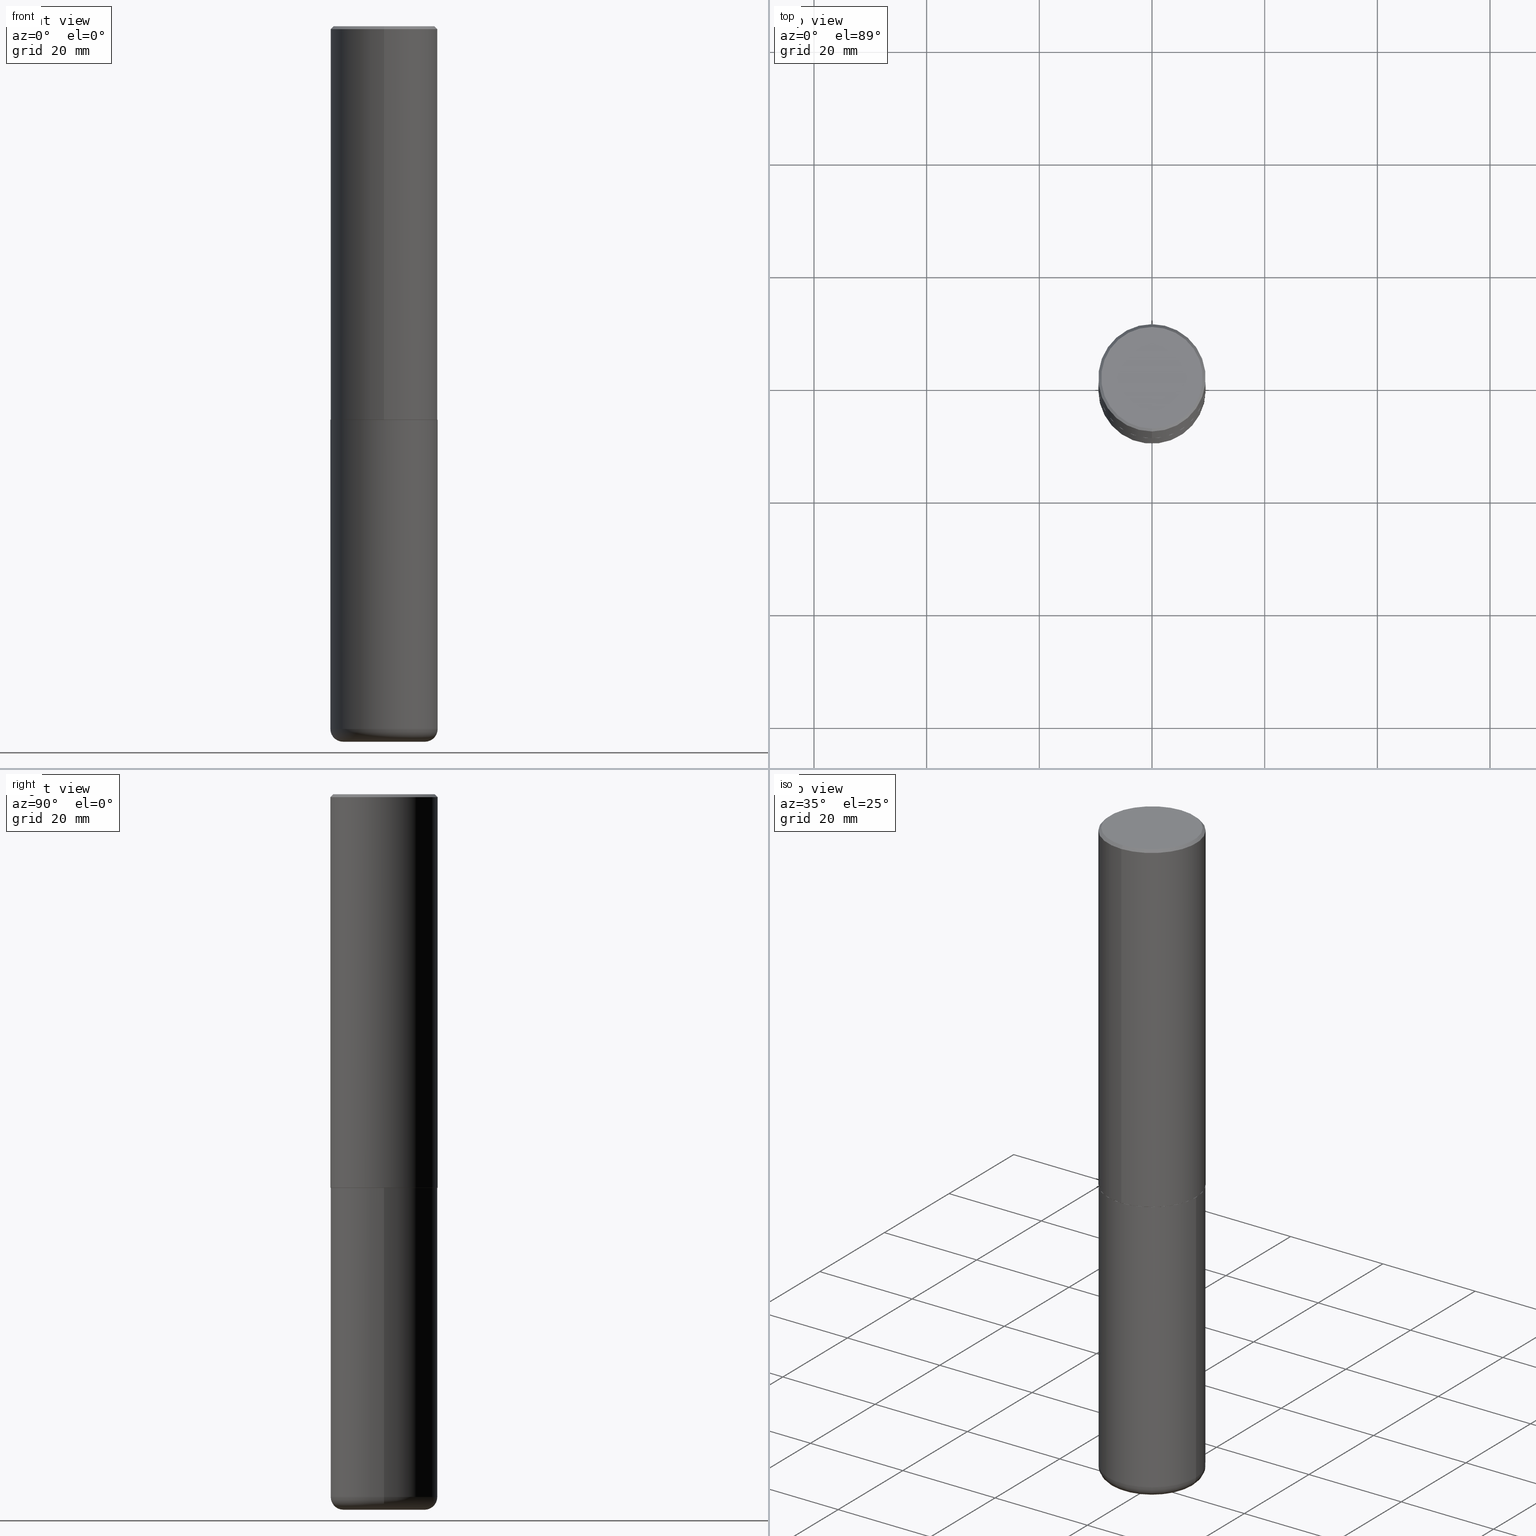
[diagram: canonical four-view strip — front | top / right | iso, engineering-drawing reading convention]
A machine part, canonical four-view strip (front | top / right | iso — engineering-drawing reading convention). The complete STEP part file that produces these views, byte-faithful:
ISO-10303-21;
HEADER;
FILE_DESCRIPTION (( 'STEP AP203' ),
    '1' );
FILE_NAME ('37662.STEP',
    '2024-03-02T07:23:59',
    ( '' ),
    ( '' ),
    'SwSTEP 2.0',
    'SolidWorks 2023',
    '' );
FILE_SCHEMA (( 'CONFIG_CONTROL_DESIGN' ));
ENDSEC;

DATA;
#1 = FACE_OUTER_BOUND ( 'NONE', #153, .T. ) ;
#2 = ORIENTED_EDGE ( 'NONE', *, *, #14, .T. ) ;
#3 = DIRECTION ( 'NONE',  ( -2.446040391741596606E-29, 3.490662795793665557E-15, 1.000000000000000000 ) ) ;
#4 = DIRECTION ( 'NONE',  ( -2.445468806185136877E-29, 3.491481338843145188E-15, 1.000000000000000000 ) ) ;
#5 = DATE_AND_TIME ( #70, #200 ) ;
#6 = LINE ( 'NONE', #140, #92 ) ;
#7 = LOCAL_TIME ( 2, 23, 59.00000000000000000, #12 ) ;
#8 = CALENDAR_DATE ( 2024, 2, 3 ) ;
#9 = DIRECTION ( 'NONE',  ( 2.438088387897960049E-29, -3.491481338843145188E-15, -1.000000000000000000 ) ) ;
#10 = APPLICATION_PROTOCOL_DEFINITION ( 'international standard', 'config_control_design', 1994, #344 ) ;
#11 = LINE ( 'NONE', #202, #33 ) ;
#12 = COORDINATED_UNIVERSAL_TIME_OFFSET ( 5, 0, .BEHIND. ) ;
#13 = CC_DESIGN_DATE_AND_TIME_ASSIGNMENT ( #5, #105, ( #141 ) ) ;
#14 = EDGE_CURVE ( 'NONE', #337, #113, #383, .T. ) ;
#15 = AXIS2_PLACEMENT_3D ( 'NONE', #198, #345, #162 ) ;
#16 = DATE_AND_TIME ( #272, #7 ) ;
#17 = ADVANCED_FACE ( 'NONE', ( #172 ), #190, .T. ) ;
#18 = VERTEX_POINT ( 'NONE', #290 ) ;
#19 = CIRCLE ( 'NONE', #256, 0.08999999999999992728 ) ;
#20 = AXIS2_PLACEMENT_3D ( 'NONE', #350, #260, #137 ) ;
#21 = ORIENTED_EDGE ( 'NONE', *, *, #302, .T. ) ;
#22 = ORIENTED_EDGE ( 'NONE', *, *, #29, .T. ) ;
#23 = CARTESIAN_POINT ( 'NONE',  ( 6.724165036897648492E-29, -9.595832025636787455E-15, -2.749000000000000110 ) ) ;
#24 = CIRCLE ( 'NONE', #81, 0.3739999999999999991 ) ;
#25 = DIRECTION ( 'NONE',  ( -6.982962677686266711E-15, -1.000000000000000000, 2.921762560068730595E-15 ) ) ;
#26 = LINE ( 'NONE', #123, #216 ) ;
#27 = DIRECTION ( 'NONE',  ( 1.000000000000000000, -6.982962677686266711E-15, 0.000000000000000000 ) ) ;
#28 = DIRECTION ( 'NONE',  ( -6.982962677686265922E-15, -1.000000000000000000, 3.494488891895536035E-15 ) ) ;
#29 = EDGE_CURVE ( 'NONE', #220, #47, #26, .T. ) ;
#30 = DIRECTION ( 'NONE',  ( -2.446040391741596606E-29, 3.490662795793665557E-15, 1.000000000000000000 ) ) ;
#31 = ORIENTED_EDGE ( 'NONE', *, *, #298, .T. ) ;
#32 = DIRECTION ( 'NONE',  ( -2.446040391741596606E-29, 3.490662795793665557E-15, 1.000000000000000000 ) ) ;
#33 = VECTOR ( 'NONE', #4, 39.37007874015748143 ) ;
#34 = CARTESIAN_POINT ( 'NONE',  ( 4.892080783483214581E-31, -6.981325591587361238E-17, -0.02000000000000008715 ) ) ;
#35 = DIRECTION ( 'NONE',  ( -6.982962677686265922E-15, -1.000000000000000000, 2.913971193241877611E-15 ) ) ;
#36 = PLANE ( 'NONE',  #130 ) ;
#37 = CARTESIAN_POINT ( 'NONE',  ( 6.726611077289389265E-29, -9.599322688432580971E-15, -2.750000000000000000 ) ) ;
#38 = PERSON_AND_ORGANIZATION_ROLE ( 'creator' ) ;
#39 = CONICAL_SURFACE ( 'NONE', #300, 0.3750000000000000555, 0.7853981633974465026 ) ;
#40 = DIRECTION ( 'NONE',  ( 1.000000000000000000, -6.982962677686269077E-15, 0.000000000000000000 ) ) ;
#41 = APPROVAL_ROLE ( '' ) ;
#42 = DIRECTION ( 'NONE',  ( -2.445468806185136597E-29, 3.491481338843145583E-15, 1.000000000000000000 ) ) ;
#43 = APPROVAL_DATE_TIME ( #362, #415 ) ;
#44 = AXIS2_PLACEMENT_3D ( 'NONE', #294, #413, #128 ) ;
#45 = ORIENTED_EDGE ( 'NONE', *, *, #342, .F. ) ;
#46 = SHAPE_DEFINITION_REPRESENTATION ( #412, #373 ) ;
#47 = VERTEX_POINT ( 'NONE', #126 ) ;
#48 = AXIS2_PLACEMENT_3D ( 'NONE', #96, #197, #28 ) ;
#49 = AXIS2_PLACEMENT_3D ( 'NONE', #63, #233, #196 ) ;
#50 = LOCAL_TIME ( 2, 23, 59.00000000000000000, #303 ) ;
#51 = APPROVAL_DATE_TIME ( #403, #191 ) ;
#52 = ORIENTED_EDGE ( 'NONE', *, *, #266, .T. ) ;
#53 = EDGE_CURVE ( 'NONE', #277, #247, #154, .T. ) ;
#54 = ORIENTED_EDGE ( 'NONE', *, *, #99, .T. ) ;
#55 = ORIENTED_EDGE ( 'NONE', *, *, #335, .T. ) ;
#56 = CIRCLE ( 'NONE', #49, 0.3750000000000000555 ) ;
#57 = DESIGN_CONTEXT ( 'detailed design', #344, 'design' ) ;
#58 = ORGANIZATION ( 'UNSPECIFIED', 'UNSPECIFIED', '' ) ;
#59 = DIRECTION ( 'NONE',  ( 6.982962677686265922E-15, 1.000000000000000000, -3.494488891895536035E-15 ) ) ;
#60 = CARTESIAN_POINT ( 'NONE',  ( 0.000000000000000000, 0.000000000000000000, 0.000000000000000000 ) ) ;
#61 = CARTESIAN_POINT ( 'NONE',  ( 2.664535259100376880E-15, 0.3750000000000002220, -1.308998548422625521E-15 ) ) ;
#62 = DIRECTION ( 'NONE',  ( 2.446040391741596045E-29, -3.490662795793665557E-15, -1.000000000000000000 ) ) ;
#63 = CARTESIAN_POINT ( 'NONE',  ( 6.725039217009124520E-29, -9.601573681818649859E-15, -2.750000000000000000 ) ) ;
#64 = VERTEX_POINT ( 'NONE', #251 ) ;
#65 = DIRECTION ( 'NONE',  ( 2.446040391741596606E-29, -3.490662795793665557E-15, -1.000000000000000000 ) ) ;
#66 = CIRCLE ( 'NONE', #346, 0.2850000000000000311 ) ;
#67 = DIRECTION ( 'NONE',  ( 1.000000000000000000, -6.982962677686266711E-15, 4.876176775795935793E-29 ) ) ;
#68 = EDGE_CURVE ( 'NONE', #64, #47, #169, .T. ) ;
#69 = FACE_OUTER_BOUND ( 'NONE', #309, .T. ) ;
#70 = CALENDAR_DATE ( 2024, 2, 3 ) ;
#71 = DIRECTION ( 'NONE',  ( -2.445468806185136597E-29, 3.491481338843145583E-15, 1.000000000000000000 ) ) ;
#72 = LENGTH_MEASURE_WITH_UNIT ( LENGTH_MEASURE( 0.02539999999999999897 ), #78 );
#73 = AXIS2_PLACEMENT_3D ( 'NONE', #60, #318, #222 ) ;
#74 = CONICAL_SURFACE ( 'NONE', #267, 0.3739999999999999991, 0.7853981633977213939 ) ;
#75 = FACE_OUTER_BOUND ( 'NONE', #186, .T. ) ;
#76 = EDGE_CURVE ( 'NONE', #411, #310, #19, .T. ) ;
#77 = LINE ( 'NONE', #174, #306 ) ;
#78 =( LENGTH_UNIT ( ) NAMED_UNIT ( * ) SI_UNIT ( $, .METRE. ) );
#79 = CLOSED_SHELL ( 'NONE', ( #316, #255, #118, #192, #157, #203 ) ) ;
#80 = ORIENTED_EDGE ( 'NONE', *, *, #397, .F. ) ;
#81 = AXIS2_PLACEMENT_3D ( 'NONE', #321, #229, #25 ) ;
#82 = EDGE_LOOP ( 'NONE', ( #166, #52 ) ) ;
#83 = ORIENTED_EDGE ( 'NONE', *, *, #381, .T. ) ;
#84 = EDGE_CURVE ( 'NONE', #47, #64, #239, .T. ) ;
#85 = AXIS2_PLACEMENT_3D ( 'NONE', #265, #42, #354 ) ;
#86 = VERTEX_POINT ( 'NONE', #414 ) ;
#87 = ORIENTED_EDGE ( 'NONE', *, *, #226, .T. ) ;
#88 = DIRECTION ( 'NONE',  ( 1.000000000000000000, -6.982962677686269077E-15, 4.883557194083113462E-29 ) ) ;
#89 = ADVANCED_FACE ( 'NONE', ( #129 ), #257, .F. ) ;
#90 = ORIENTED_EDGE ( 'NONE', *, *, #177, .F. ) ;
#91 = VECTOR ( 'NONE', #230, 39.37007874015748143 ) ;
#92 = VECTOR ( 'NONE', #3, 39.37007874015748143 ) ;
#93 = PLANE ( 'NONE',  #44 ) ;
#94 = EDGE_LOOP ( 'NONE', ( #188, #21, #418, #199 ) ) ;
#95 = DIRECTION ( 'NONE',  ( -2.445468806185136597E-29, 3.491481338843145583E-15, 1.000000000000000000 ) ) ;
#96 = CARTESIAN_POINT ( 'NONE',  ( 4.892080783483214581E-31, -6.981325591587361238E-17, -0.02000000000000008715 ) ) ;
#97 = CARTESIAN_POINT ( 'NONE',  ( 6.726611077289389265E-29, -9.599322688432580971E-15, -2.750000000000000000 ) ) ;
#98 = CARTESIAN_POINT ( 'NONE',  ( -0.3749999999999999445, 2.664535259100375303E-15, -1.844600658845589318E-29 ) ) ;
#99 = EDGE_CURVE ( 'NONE', #310, #337, #109, .T. ) ;
#100 = AXIS2_PLACEMENT_3D ( 'NONE', #34, #160, #285 ) ;
#101 = LINE ( 'NONE', #348, #395 ) ;
#102 = CONICAL_SURFACE ( 'NONE', #323, 0.3739999999999999991, 0.7853981633977213939 ) ;
#103 = CARTESIAN_POINT ( 'NONE',  ( -2.504081769186608216E-15, -0.3549999999999999822, 1.285848347115290366E-15 ) ) ;
#104 = PLANE ( 'NONE',  #416 ) ;
#105 = DATE_TIME_ROLE ( 'creation_date' ) ;
#106 = ADVANCED_FACE ( 'NONE', ( #138 ), #102, .T. ) ;
#107 = FACE_OUTER_BOUND ( 'NONE', #82, .T. ) ;
#108 = CC_DESIGN_PERSON_AND_ORGANIZATION_ASSIGNMENT ( #112, #235, ( #141 ) ) ;
#109 = CIRCLE ( 'NONE', #394, 0.3749999999999999445 ) ;
#110 = CIRCLE ( 'NONE', #366, 0.3750000000000003886 ) ;
#111 = DIRECTION ( 'NONE',  ( -2.445468806185136597E-29, 3.491481338843145583E-15, 1.000000000000000000 ) ) ;
#112 = PERSON_AND_ORGANIZATION ( #210, #58 ) ;
#113 = VERTEX_POINT ( 'NONE', #204 ) ;
#114 = EDGE_CURVE ( 'NONE', #310, #218, #11, .T. ) ;
#115 = CIRCLE ( 'NONE', #339, 0.3750000000000000555 ) ;
#116 = ORIENTED_EDGE ( 'NONE', *, *, #53, .T. ) ;
#117 = COORDINATED_UNIVERSAL_TIME_OFFSET ( 5, 0, .BEHIND. ) ;
#118 = ADVANCED_FACE ( 'NONE', ( #107 ), #104, .F. ) ;
#119 = ORIENTED_EDGE ( 'NONE', *, *, #266, .F. ) ;
#120 = ORIENTED_EDGE ( 'NONE', *, *, #387, .F. ) ;
#121 = CIRCLE ( 'NONE', #232, 0.2850000000000000311 ) ;
#122 = CC_DESIGN_APPROVAL ( #352, ( #149 ) ) ;
#123 = CARTESIAN_POINT ( 'NONE',  ( -2.572686749164323547E-15, -0.3750000000000001110, -0.01999999999999877570 ) ) ;
#124 = EDGE_CURVE ( 'NONE', #215, #64, #385, .T. ) ;
#125 = CARTESIAN_POINT ( 'NONE',  ( 6.725039217009124520E-29, -9.601573681818649859E-15, -2.750000000000000000 ) ) ;
#126 = CARTESIAN_POINT ( 'NONE',  ( -2.572686749164323547E-15, -0.3750000000000001110, -0.01999999999999877570 ) ) ;
#127 = CC_DESIGN_PERSON_AND_ORGANIZATION_ASSIGNMENT ( #328, #270, ( #286 ) ) ;
#128 = DIRECTION ( 'NONE',  ( -6.982962677686265922E-15, -1.000000000000000000, 3.490662795793665557E-15 ) ) ;
#129 = FACE_OUTER_BOUND ( 'NONE', #280, .T. ) ;
#130 = AXIS2_PLACEMENT_3D ( 'NONE', #329, #304, #243 ) ;
#131 = LOCAL_TIME ( 2, 23, 59.00000000000000000, #117 ) ;
#132 = DIRECTION ( 'NONE',  ( -2.445468806185136597E-29, 3.491481338843145583E-15, 1.000000000000000000 ) ) ;
#133 = ORIENTED_EDGE ( 'NONE', *, *, #278, .T. ) ;
#134 = CYLINDRICAL_SURFACE ( 'NONE', #246, 0.3749999999999999445 ) ;
#135 = ORIENTED_EDGE ( 'NONE', *, *, #151, .F. ) ;
#136 = MANIFOLD_SOLID_BREP ( 'Body-Move/Copy2[2]', #281 ) ;
#137 = DIRECTION ( 'NONE',  ( -6.982962677686266711E-15, -1.000000000000000000, 3.490662795793665951E-15 ) ) ;
#138 = FACE_OUTER_BOUND ( 'NONE', #406, .T. ) ;
#139 = SECURITY_CLASSIFICATION_LEVEL ( 'unclassified' ) ;
#140 = CARTESIAN_POINT ( 'NONE',  ( -2.618611004132351594E-15, -0.3750000000000002220, 1.308998548422625521E-15 ) ) ;
#141 = PRODUCT_DEFINITION ( 'UNKNOWN', '', #149, #57 ) ;
#142 = DATE_TIME_ROLE ( 'classification_date' ) ;
#143 = DIRECTION ( 'NONE',  ( -6.982962677686266711E-15, -1.000000000000000000, 2.921762560068730595E-15 ) ) ;
#144 = CALENDAR_DATE ( 2024, 2, 3 ) ;
#145 = FACE_OUTER_BOUND ( 'NONE', #369, .T. ) ;
#146 = APPROVAL_DATE_TIME ( #16, #352 ) ;
#147 = MANIFOLD_SOLID_BREP ( 'Body-Move/Copy2[1]', #79 ) ;
#148 = AXIS2_PLACEMENT_3D ( 'NONE', #176, #361, #332 ) ;
#149 = PRODUCT_DEFINITION_FORMATION_WITH_SPECIFIED_SOURCE ( 'ANY', '', #279, .NOT_KNOWN. ) ;
#150 = DATE_AND_TIME ( #8, #242 ) ;
#151 = EDGE_CURVE ( 'NONE', #337, #310, #161, .T. ) ;
#152 = ORIENTED_EDGE ( 'NONE', *, *, #219, .T. ) ;
#153 = EDGE_LOOP ( 'NONE', ( #284, #22, #261, #315 ) ) ;
#154 = CIRCLE ( 'NONE', #376, 0.3750000000000003886 ) ;
#155 = AXIS2_PLACEMENT_3D ( 'NONE', #97, #32, #289 ) ;
#156 = ORIENTED_EDGE ( 'NONE', *, *, #76, .T. ) ;
#157 = ADVANCED_FACE ( 'NONE', ( #145 ), #334, .T. ) ;
#158 = EDGE_LOOP ( 'NONE', ( #80, #399 ) ) ;
#159 = ORIENTED_EDGE ( 'NONE', *, *, #114, .F. ) ;
#160 = DIRECTION ( 'NONE',  ( -2.446040391741596606E-29, 3.490662795793665557E-15, 1.000000000000000000 ) ) ;
#161 = CIRCLE ( 'NONE', #275, 0.3749999999999999445 ) ;
#162 = DIRECTION ( 'NONE',  ( -6.982962677686265922E-15, -1.000000000000000000, 3.490662795793665557E-15 ) ) ;
#163 = PRODUCT_RELATED_PRODUCT_CATEGORY ( 'detail', '', ( #279 ) ) ;
#164 = ORIENTED_EDGE ( 'NONE', *, *, #114, .T. ) ;
#165 = CARTESIAN_POINT ( 'NONE',  ( -0.2850000000000000311, -1.511812657680356008E-14, -4.910000000000000142 ) ) ;
#166 = ORIENTED_EDGE ( 'NONE', *, *, #342, .T. ) ;
#167 = FACE_OUTER_BOUND ( 'NONE', #295, .T. ) ;
#168 = ORIENTED_EDGE ( 'NONE', *, *, #302, .F. ) ;
#169 = CIRCLE ( 'NONE', #100, 0.3750000000000000555 ) ;
#170 = DIRECTION ( 'NONE',  ( 7.105427357601001859E-15, 1.000000000000000000, -3.491481338843145583E-15 ) ) ;
#171 = ADVANCED_FACE ( 'NONE', ( #271 ), #74, .T. ) ;
#172 = FACE_OUTER_BOUND ( 'NONE', #311, .T. ) ;
#173 = CARTESIAN_POINT ( 'NONE',  ( 1.222734403092568523E-28, -1.745740669421572989E-14, -5.000000000000000000 ) ) ;
#174 = CARTESIAN_POINT ( 'NONE',  ( -2.611628041454596160E-15, -0.3740000000000096581, -2.749999999999998668 ) ) ;
#175 = APPROVAL_STATUS ( 'not_yet_approved' ) ;
#176 = CARTESIAN_POINT ( 'NONE',  ( -1.141397163745304909E-45, 1.628849886601155835E-31, 4.666305460853910467E-17 ) ) ;
#177 = EDGE_CURVE ( 'NONE', #215, #220, #185, .T. ) ;
#178 = CONICAL_SURFACE ( 'NONE', #282, 0.3750000000000000555, 0.7853981633974465026 ) ;
#179 = DIRECTION ( 'NONE',  ( 1.000000000000000000, 0.000000000000000000, 0.000000000000000000 ) ) ;
#180 = CARTESIAN_POINT ( 'NONE',  ( 4.892080783483214581E-31, -6.981325591587361238E-17, -0.02000000000000008715 ) ) ;
#181 = APPLICATION_PROTOCOL_DEFINITION ( 'international standard', 'config_control_design', 1994, #212 ) ;
#182 = DIRECTION ( 'NONE',  ( -2.446040391741596606E-29, 3.490662795793665557E-15, 1.000000000000000000 ) ) ;
#183 = COORDINATED_UNIVERSAL_TIME_OFFSET ( 5, 0, .BEHIND. ) ;
#184 = ADVANCED_FACE ( 'NONE', ( #69 ), #178, .T. ) ;
#185 = CIRCLE ( 'NONE', #148, 0.3549999999999999822 ) ;
#186 = EDGE_LOOP ( 'NONE', ( #343, #195, #164, #119 ) ) ;
#187 = ORIENTED_EDGE ( 'NONE', *, *, #381, .F. ) ;
#188 = ORIENTED_EDGE ( 'NONE', *, *, #397, .T. ) ;
#189 = AXIS2_PLACEMENT_3D ( 'NONE', #276, #396, #179 ) ;
#190 = CYLINDRICAL_SURFACE ( 'NONE', #73, 0.3750000000000002220 ) ;
#191 = APPROVAL ( #237, 'UNSPECIFIED' ) ;
#192 = ADVANCED_FACE ( 'NONE', ( #75 ), #326, .T. ) ;
#193 = ORIENTED_EDGE ( 'NONE', *, *, #68, .T. ) ;
#194 = CARTESIAN_POINT ( 'NONE',  ( 2.660982545421643429E-15, 0.3739999999999903957, -2.750000000000000888 ) ) ;
#195 = ORIENTED_EDGE ( 'NONE', *, *, #151, .T. ) ;
#196 = DIRECTION ( 'NONE',  ( 1.000000000000000000, -6.982962677686266711E-15, 0.000000000000000000 ) ) ;
#197 = DIRECTION ( 'NONE',  ( -2.446040391741596606E-29, 3.490662795793665557E-15, 1.000000000000000000 ) ) ;
#198 = CARTESIAN_POINT ( 'NONE',  ( -1.141397163745304909E-45, 1.628849886601155835E-31, 4.666305460853910467E-17 ) ) ;
#199 = ORIENTED_EDGE ( 'NONE', *, *, #219, .F. ) ;
#200 = LOCAL_TIME ( 2, 23, 59.00000000000000000, #183 ) ;
#201 = FACE_OUTER_BOUND ( 'NONE', #158, .T. ) ;
#202 = CARTESIAN_POINT ( 'NONE',  ( 0.3749999999999999445, -2.618611004132349622E-15, 1.828566290923475642E-29 ) ) ;
#203 = ADVANCED_FACE ( 'NONE', ( #209 ), #36, .T. ) ;
#204 = CARTESIAN_POINT ( 'NONE',  ( -0.3750000000000000555, -1.070783826866887333E-14, -2.750000000000000000 ) ) ;
#205 = PERSON_AND_ORGANIZATION ( #210, #58 ) ;
#206 = CC_DESIGN_PERSON_AND_ORGANIZATION_ASSIGNMENT ( #245, #38, ( #149 ) ) ;
#207 = DIRECTION ( 'NONE',  ( -6.982962677686266711E-15, -1.000000000000000000, 2.921762560068730595E-15 ) ) ;
#208 =( NAMED_UNIT ( * ) PLANE_ANGLE_UNIT ( ) SI_UNIT ( $, .RADIAN. ) );
#209 = FACE_OUTER_BOUND ( 'NONE', #288, .T. ) ;
#210 = PERSON ( 'UNSPECIFIED', 'UNSPECIFIED', 'UNSPECIFIED', ('UNSPECIFIED'), ('UNSPECIFIED'), ('UNSPECIFIED') ) ;
#211 = PERSON_AND_ORGANIZATION ( #210, #58 ) ;
#212 = APPLICATION_CONTEXT ( 'configuration controlled 3d designs of mechanical parts and assemblies' ) ;
#213 = TOROIDAL_SURFACE ( 'NONE', #223, 0.2850000000000000311, 0.08999999999999989952 ) ;
#214 = ORIENTED_EDGE ( 'NONE', *, *, #29, .F. ) ;
#215 = VERTEX_POINT ( 'NONE', #357 ) ;
#216 = VECTOR ( 'NONE', #378, 39.37007874015748143 ) ;
#217 = ORIENTED_EDGE ( 'NONE', *, *, #84, .F. ) ;
#218 = VERTEX_POINT ( 'NONE', #363 ) ;
#219 = EDGE_CURVE ( 'NONE', #86, #247, #77, .T. ) ;
#220 = VERTEX_POINT ( 'NONE', #103 ) ;
#221 = CARTESIAN_POINT ( 'NONE',  ( 0.3749999999999999445, -1.976178437785219664E-14, -4.910000000000000142 ) ) ;
#222 = DIRECTION ( 'NONE',  ( -6.982962677686266711E-15, -1.000000000000000000, 3.490662795793665951E-15 ) ) ;
#223 = AXIS2_PLACEMENT_3D ( 'NONE', #296, #291, #88 ) ;
#224 = CARTESIAN_POINT ( 'NONE',  ( 0.2850000000000000311, -1.944755105735631653E-14, -5.000000000000000000 ) ) ;
#225 = DIRECTION ( 'NONE',  ( -6.982962677686265922E-15, -1.000000000000000000, 2.913971193241877611E-15 ) ) ;
#226 = EDGE_CURVE ( 'NONE', #247, #47, #6, .T. ) ;
#227 = FACE_OUTER_BOUND ( 'NONE', #405, .T. ) ;
#228 = DIRECTION ( 'NONE',  ( -2.445468806185136597E-29, 3.491481338843145583E-15, 1.000000000000000000 ) ) ;
#229 = DIRECTION ( 'NONE',  ( -2.446040391741596606E-29, 3.490662795793665557E-15, 1.000000000000000000 ) ) ;
#230 = DIRECTION ( 'NONE',  ( -2.445468806185136877E-29, 3.491481338843145188E-15, 1.000000000000000000 ) ) ;
#231 = DIMENSIONAL_EXPONENTS ( 1.000000000000000000, 0.000000000000000000, 0.000000000000000000, 0.000000000000000000, 0.000000000000000000, 0.000000000000000000, 0.000000000000000000 ) ;
#232 = AXIS2_PLACEMENT_3D ( 'NONE', #353, #379, #27 ) ;
#233 = DIRECTION ( 'NONE',  ( -2.445468806185136597E-29, 3.491481338843145583E-15, 1.000000000000000000 ) ) ;
#234 = CARTESIAN_POINT ( 'NONE',  ( 1.200725183836902132E-28, -1.714317337371984662E-14, -4.910000000000000142 ) ) ;
#235 = PERSON_AND_ORGANIZATION_ROLE ( 'creator' ) ;
#236 = CARTESIAN_POINT ( 'NONE',  ( 6.725039217009124520E-29, -9.601573681818649859E-15, -2.750000000000000000 ) ) ;
#237 = APPROVAL_STATUS ( 'not_yet_approved' ) ;
#238 = DIRECTION ( 'NONE',  ( 4.937700262164538576E-15, 0.7071067811865437980, -0.7071067811865512365 ) ) ;
#239 = CIRCLE ( 'NONE', #48, 0.3750000000000000555 ) ;
#240 = CIRCLE ( 'NONE', #15, 0.3549999999999999822 ) ;
#241 = MECHANICAL_CONTEXT ( 'NONE', #212, 'mechanical' ) ;
#242 = LOCAL_TIME ( 2, 23, 59.00000000000000000, #307 ) ;
#243 = DIRECTION ( 'NONE',  ( -1.000000000000000000, 6.982962677686265922E-15, -4.876176775795935793E-29 ) ) ;
#244 = UNCERTAINTY_MEASURE_WITH_UNIT (LENGTH_MEASURE( 1.000000000000000082E-05 ), #364, 'distance_accuracy_value', 'NONE');
#245 = PERSON_AND_ORGANIZATION ( #210, #58 ) ;
#246 = AXIS2_PLACEMENT_3D ( 'NONE', #264, #254, #67 ) ;
#247 = VERTEX_POINT ( 'NONE', #374 ) ;
#248 = ORIENTED_EDGE ( 'NONE', *, *, #273, .F. ) ;
#249 = ORIENTED_EDGE ( 'NONE', *, *, #68, .F. ) ;
#250 = ADVANCED_FACE ( 'NONE', ( #227 ), #377, .T. ) ;
#251 = CARTESIAN_POINT ( 'NONE',  ( 2.618611004132350411E-15, 0.3749999999999999445, -0.02000000000000139513 ) ) ;
#252 = DIRECTION ( 'NONE',  ( 1.000000000000000000, -6.982962677686266711E-15, 0.000000000000000000 ) ) ;
#253 = CARTESIAN_POINT ( 'NONE',  ( 0.2850000000000000311, -1.913331773686043011E-14, -4.910000000000000142 ) ) ;
#254 = DIRECTION ( 'NONE',  ( -2.445468806185136597E-29, 3.491481338843145583E-15, 1.000000000000000000 ) ) ;
#255 = ADVANCED_FACE ( 'NONE', ( #167 ), #213, .T. ) ;
#256 = AXIS2_PLACEMENT_3D ( 'NONE', #253, #375, #347 ) ;
#257 = PLANE ( 'NONE',  #292 ) ;
#258 =( GEOMETRIC_REPRESENTATION_CONTEXT ( 3 ) GLOBAL_UNCERTAINTY_ASSIGNED_CONTEXT ( ( #244 ) ) GLOBAL_UNIT_ASSIGNED_CONTEXT ( ( #364, #208, #388 ) ) REPRESENTATION_CONTEXT ( 'NONE', 'WORKASPACE' ) );
#259 = APPROVAL_PERSON_ORGANIZATION ( #211, #415, #41 ) ;
#260 = DIRECTION ( 'NONE',  ( -2.446040391741596606E-29, 3.490662795793665557E-15, 1.000000000000000000 ) ) ;
#261 = ORIENTED_EDGE ( 'NONE', *, *, #84, .T. ) ;
#262 = CARTESIAN_POINT ( 'NONE',  ( 4.892080783483214581E-31, -6.981325591587361238E-17, -0.02000000000000008715 ) ) ;
#263 = EDGE_LOOP ( 'NONE', ( #54, #2, #45, #159 ) ) ;
#264 = CARTESIAN_POINT ( 'NONE',  ( 0.000000000000000000, 0.000000000000000000, 0.000000000000000000 ) ) ;
#265 = CARTESIAN_POINT ( 'NONE',  ( 1.200725183836902132E-28, -1.714317337371984662E-14, -4.910000000000000142 ) ) ;
#266 = EDGE_CURVE ( 'NONE', #113, #218, #56, .T. ) ;
#267 = AXIS2_PLACEMENT_3D ( 'NONE', #37, #389, #207 ) ;
#268 = PERSON_AND_ORGANIZATION ( #210, #58 ) ;
#269 = CARTESIAN_POINT ( 'NONE',  ( 6.726611077289389265E-29, -9.599322688432580971E-15, -2.750000000000000000 ) ) ;
#270 = PERSON_AND_ORGANIZATION_ROLE ( 'classification_officer' ) ;
#271 = FACE_OUTER_BOUND ( 'NONE', #94, .T. ) ;
#272 = CALENDAR_DATE ( 2024, 2, 3 ) ;
#273 = EDGE_CURVE ( 'NONE', #18, #337, #407, .T. ) ;
#274 = DIRECTION ( 'NONE',  ( 6.982962677686265922E-15, 1.000000000000000000, -3.494488891895536035E-15 ) ) ;
#275 = AXIS2_PLACEMENT_3D ( 'NONE', #234, #71, #40 ) ;
#276 = CARTESIAN_POINT ( 'NONE',  ( 0.000000000000000000, 0.000000000000000000, 0.000000000000000000 ) ) ;
#277 = VERTEX_POINT ( 'NONE', #356 ) ;
#278 = EDGE_CURVE ( 'NONE', #351, #86, #24, .T. ) ;
#279 = PRODUCT ( '37662', '37662', '', ( #241 ) ) ;
#280 = EDGE_LOOP ( 'NONE', ( #341, #312 ) ) ;
#281 = CLOSED_SHELL ( 'NONE', ( #171, #250, #338, #184, #17, #106, #402, #89 ) ) ;
#282 = AXIS2_PLACEMENT_3D ( 'NONE', #180, #391, #274 ) ;
#283 = CC_DESIGN_APPROVAL ( #415, ( #141 ) ) ;
#284 = ORIENTED_EDGE ( 'NONE', *, *, #325, .F. ) ;
#285 = DIRECTION ( 'NONE',  ( -6.982962677686265922E-15, -1.000000000000000000, 3.494488891895536035E-15 ) ) ;
#286 = SECURITY_CLASSIFICATION ( '', '', #139 ) ;
#287 = CARTESIAN_POINT ( 'NONE',  ( 6.724165036897648492E-29, -9.595832025636787455E-15, -2.749000000000000110 ) ) ;
#288 = EDGE_LOOP ( 'NONE', ( #120, #187 ) ) ;
#289 = DIRECTION ( 'NONE',  ( -6.982962677686266711E-15, -1.000000000000000000, 2.921762560068730595E-15 ) ) ;
#290 = CARTESIAN_POINT ( 'NONE',  ( -0.2850000000000000311, -1.495549900595945556E-14, -5.000000000000000000 ) ) ;
#291 = DIRECTION ( 'NONE',  ( -2.445468806185136597E-29, 3.491481338843145583E-15, 1.000000000000000000 ) ) ;
#292 = AXIS2_PLACEMENT_3D ( 'NONE', #349, #62, #380 ) ;
#293 = ORIENTED_EDGE ( 'NONE', *, *, #53, .F. ) ;
#294 = CARTESIAN_POINT ( 'NONE',  ( 6.726611077289389265E-29, -9.599322688432580971E-15, -2.750000000000000000 ) ) ;
#295 = EDGE_LOOP ( 'NONE', ( #400, #409, #368, #336 ) ) ;
#296 = CARTESIAN_POINT ( 'NONE',  ( 1.200725183836902132E-28, -1.714317337371984662E-14, -4.910000000000000142 ) ) ;
#297 = DIRECTION ( 'NONE',  ( -4.937700262165896205E-15, -0.7071067811867381980, 0.7071067811863568364 ) ) ;
#298 = EDGE_CURVE ( 'NONE', #277, #64, #384, .T. ) ;
#299 = DIRECTION ( 'NONE',  ( 1.000000000000000000, -6.982962677686266711E-15, 4.876176775795935793E-29 ) ) ;
#300 = AXIS2_PLACEMENT_3D ( 'NONE', #262, #65, #59 ) ;
#301 = DIRECTION ( 'NONE',  ( 1.000000000000000000, -6.982962677686269077E-15, 0.000000000000000000 ) ) ;
#302 = EDGE_CURVE ( 'NONE', #351, #277, #101, .T. ) ;
#303 = COORDINATED_UNIVERSAL_TIME_OFFSET ( 5, 0, .BEHIND. ) ;
#304 = DIRECTION ( 'NONE',  ( 2.438088387897960049E-29, -3.491481338843145188E-15, -1.000000000000000000 ) ) ;
#305 = APPROVAL_STATUS ( 'not_yet_approved' ) ;
#306 = VECTOR ( 'NONE', #297, 39.37007874015748143 ) ;
#307 = COORDINATED_UNIVERSAL_TIME_OFFSET ( 5, 0, .BEHIND. ) ;
#308 = CC_DESIGN_DATE_AND_TIME_ASSIGNMENT ( #150, #142, ( #286 ) ) ;
#309 = EDGE_LOOP ( 'NONE', ( #214, #90, #365, #193 ) ) ;
#310 = VERTEX_POINT ( 'NONE', #221 ) ;
#311 = EDGE_LOOP ( 'NONE', ( #370, #116, #87, #249 ) ) ;
#312 = ORIENTED_EDGE ( 'NONE', *, *, #325, .T. ) ;
#313 = DIRECTION ( 'NONE',  ( 5.024295867789434219E-15, 0.7071067811867430830, 0.7071067811863519514 ) ) ;
#314 = VECTOR ( 'NONE', #30, 39.37007874015748143 ) ;
#315 = ORIENTED_EDGE ( 'NONE', *, *, #124, .F. ) ;
#316 = ADVANCED_FACE ( 'NONE', ( #324 ), #134, .T. ) ;
#317 = DIRECTION ( 'NONE',  ( 1.000000000000000000, -6.982962677686266711E-15, 0.000000000000000000 ) ) ;
#318 = DIRECTION ( 'NONE',  ( -2.446040391741596606E-29, 3.490662795793665557E-15, 1.000000000000000000 ) ) ;
#319 = CARTESIAN_POINT ( 'NONE',  ( -0.3749999999999999445, -1.447863811461947092E-14, -4.910000000000000142 ) ) ;
#320 = CARTESIAN_POINT ( 'NONE',  ( 1.200725183836902132E-28, -1.714317337371984662E-14, -4.910000000000000142 ) ) ;
#321 = CARTESIAN_POINT ( 'NONE',  ( 6.726611077289389265E-29, -9.599322688432580971E-15, -2.750000000000000000 ) ) ;
#322 = DIRECTION ( 'NONE',  ( -2.446040391741596606E-29, 3.490662795793665557E-15, 1.000000000000000000 ) ) ;
#323 = AXIS2_PLACEMENT_3D ( 'NONE', #269, #182, #143 ) ;
#324 = FACE_OUTER_BOUND ( 'NONE', #263, .T. ) ;
#325 = EDGE_CURVE ( 'NONE', #220, #215, #240, .T. ) ;
#326 = CYLINDRICAL_SURFACE ( 'NONE', #386, 0.3749999999999999445 ) ;
#327 = CARTESIAN_POINT ( 'NONE',  ( 2.618611004132350411E-15, 0.3749999999999999445, -0.02000000000000139513 ) ) ;
#328 = PERSON_AND_ORGANIZATION ( #210, #58 ) ;
#329 = CARTESIAN_POINT ( 'NONE',  ( 1.222734403092568523E-28, -1.745740669421572989E-14, -5.000000000000000000 ) ) ;
#330 = CIRCLE ( 'NONE', #155, 0.3739999999999999991 ) ;
#331 = PERSON_AND_ORGANIZATION_ROLE ( 'design_owner' ) ;
#332 = DIRECTION ( 'NONE',  ( -6.982962677686265922E-15, -1.000000000000000000, 3.490662795793665557E-15 ) ) ;
#333 = APPROVAL_ROLE ( '' ) ;
#334 = TOROIDAL_SURFACE ( 'NONE', #85, 0.2850000000000000311, 0.08999999999999989952 ) ;
#335 = EDGE_CURVE ( 'NONE', #247, #277, #110, .T. ) ;
#336 = ORIENTED_EDGE ( 'NONE', *, *, #76, .F. ) ;
#337 = VERTEX_POINT ( 'NONE', #319 ) ;
#338 = ADVANCED_FACE ( 'NONE', ( #1 ), #39, .T. ) ;
#339 = AXIS2_PLACEMENT_3D ( 'NONE', #125, #132, #252 ) ;
#340 = CALENDAR_DATE ( 2024, 2, 3 ) ;
#341 = ORIENTED_EDGE ( 'NONE', *, *, #177, .T. ) ;
#342 = EDGE_CURVE ( 'NONE', #218, #113, #115, .T. ) ;
#343 = ORIENTED_EDGE ( 'NONE', *, *, #14, .F. ) ;
#344 = APPLICATION_CONTEXT ( 'configuration controlled 3d designs of mechanical parts and assemblies' ) ;
#345 = DIRECTION ( 'NONE',  ( -2.446040391741596606E-29, 3.490662795793665557E-15, 1.000000000000000000 ) ) ;
#346 = AXIS2_PLACEMENT_3D ( 'NONE', #173, #95, #317 ) ;
#347 = DIRECTION ( 'NONE',  ( 1.000000000000000000, -6.982962677686273810E-15, 0.000000000000000000 ) ) ;
#348 = CARTESIAN_POINT ( 'NONE',  ( 2.657429831742841742E-15, 0.3739999999999903957, -2.750000000000000888 ) ) ;
#349 = CARTESIAN_POINT ( 'NONE',  ( 2.478951750578624209E-15, 0.3549999999999999822, -1.215853765202481601E-15 ) ) ;
#350 = CARTESIAN_POINT ( 'NONE',  ( 0.000000000000000000, 0.000000000000000000, 0.000000000000000000 ) ) ;
#351 = VERTEX_POINT ( 'NONE', #194 ) ;
#352 = APPROVAL ( #305, 'UNSPECIFIED' ) ;
#353 = CARTESIAN_POINT ( 'NONE',  ( 1.222734403092568523E-28, -1.745740669421572989E-14, -5.000000000000000000 ) ) ;
#354 = DIRECTION ( 'NONE',  ( 1.000000000000000000, -6.982962677686269077E-15, 4.883557194083113462E-29 ) ) ;
#355 = APPROVAL_PERSON_ORGANIZATION ( #205, #352, #333 ) ;
#356 = CARTESIAN_POINT ( 'NONE',  ( 2.664535259100411196E-15, 0.3749999999999907296, -2.749000000000000998 ) ) ;
#357 = CARTESIAN_POINT ( 'NONE',  ( 2.548781377355487113E-15, 0.3549999999999999822, -1.192522237898212341E-15 ) ) ;
#358 = CC_DESIGN_PERSON_AND_ORGANIZATION_ASSIGNMENT ( #268, #331, ( #279 ) ) ;
#359 = DIRECTION ( 'NONE',  ( -1.000000000000000000, 6.982962677686265922E-15, -4.876176775795935793E-29 ) ) ;
#360 = PERSON_AND_ORGANIZATION_ROLE ( 'design_supplier' ) ;
#361 = DIRECTION ( 'NONE',  ( -2.446040391741596606E-29, 3.490662795793665557E-15, 1.000000000000000000 ) ) ;
#362 = DATE_AND_TIME ( #144, #50 ) ;
#363 = CARTESIAN_POINT ( 'NONE',  ( 0.3750000000000000555, -1.222018468595100145E-14, -2.750000000000000000 ) ) ;
#364 =( CONVERSION_BASED_UNIT ( 'INCH', #72 ) LENGTH_UNIT ( ) NAMED_UNIT ( #231 ) );
#365 = ORIENTED_EDGE ( 'NONE', *, *, #124, .T. ) ;
#366 = AXIS2_PLACEMENT_3D ( 'NONE', #287, #410, #35 ) ;
#367 = APPROVAL_PERSON_ORGANIZATION ( #390, #191, #392 ) ;
#368 = ORIENTED_EDGE ( 'NONE', *, *, #99, .F. ) ;
#369 = EDGE_LOOP ( 'NONE', ( #248, #83, #156, #135 ) ) ;
#370 = ORIENTED_EDGE ( 'NONE', *, *, #298, .F. ) ;
#371 = AXIS2_PLACEMENT_3D ( 'NONE', #165, #170, #382 ) ;
#372 = ORIENTED_EDGE ( 'NONE', *, *, #226, .F. ) ;
#373 = ADVANCED_BREP_SHAPE_REPRESENTATION ( '37662', ( #147, #136, #189 ), #258 ) ;
#374 = CARTESIAN_POINT ( 'NONE',  ( -2.618611004132284935E-15, -0.3750000000000099920, -2.748999999999999222 ) ) ;
#375 = DIRECTION ( 'NONE',  ( -6.982962677686266711E-15, -1.000000000000000000, 3.491481338843145583E-15 ) ) ;
#376 = AXIS2_PLACEMENT_3D ( 'NONE', #23, #322, #225 ) ;
#377 = CYLINDRICAL_SURFACE ( 'NONE', #20, 0.3750000000000002220 ) ;
#378 = DIRECTION ( 'NONE',  ( -4.851104656540954809E-15, -0.7071067811865486830, -0.7071067811865463515 ) ) ;
#379 = DIRECTION ( 'NONE',  ( -2.445468806185136597E-29, 3.491481338843145583E-15, 1.000000000000000000 ) ) ;
#380 = DIRECTION ( 'NONE',  ( 6.982962677686265922E-15, 1.000000000000000000, -3.490662795793665557E-15 ) ) ;
#381 = EDGE_CURVE ( 'NONE', #18, #411, #66, .T. ) ;
#382 = DIRECTION ( 'NONE',  ( -1.000000000000000000, 7.105427357600996337E-15, 0.000000000000000000 ) ) ;
#383 = LINE ( 'NONE', #98, #91 ) ;
#384 = LINE ( 'NONE', #61, #314 ) ;
#385 = LINE ( 'NONE', #327, #401 ) ;
#386 = AXIS2_PLACEMENT_3D ( 'NONE', #393, #111, #299 ) ;
#387 = EDGE_CURVE ( 'NONE', #411, #18, #121, .T. ) ;
#388 =( NAMED_UNIT ( * ) SI_UNIT ( $, .STERADIAN. ) SOLID_ANGLE_UNIT ( ) );
#389 = DIRECTION ( 'NONE',  ( -2.446040391741596606E-29, 3.490662795793665557E-15, 1.000000000000000000 ) ) ;
#390 = PERSON_AND_ORGANIZATION ( #210, #58 ) ;
#391 = DIRECTION ( 'NONE',  ( 2.446040391741596606E-29, -3.490662795793665557E-15, -1.000000000000000000 ) ) ;
#392 = APPROVAL_ROLE ( '' ) ;
#393 = CARTESIAN_POINT ( 'NONE',  ( 0.000000000000000000, 0.000000000000000000, 0.000000000000000000 ) ) ;
#394 = AXIS2_PLACEMENT_3D ( 'NONE', #320, #228, #301 ) ;
#395 = VECTOR ( 'NONE', #313, 39.37007874015748143 ) ;
#396 = DIRECTION ( 'NONE',  ( 0.000000000000000000, 0.000000000000000000, 1.000000000000000000 ) ) ;
#397 = EDGE_CURVE ( 'NONE', #86, #351, #330, .T. ) ;
#398 = PERSON_AND_ORGANIZATION ( #210, #58 ) ;
#399 = ORIENTED_EDGE ( 'NONE', *, *, #278, .F. ) ;
#400 = ORIENTED_EDGE ( 'NONE', *, *, #387, .T. ) ;
#401 = VECTOR ( 'NONE', #238, 39.37007874015748143 ) ;
#402 = ADVANCED_FACE ( 'NONE', ( #201 ), #93, .F. ) ;
#403 = DATE_AND_TIME ( #340, #131 ) ;
#404 = CC_DESIGN_PERSON_AND_ORGANIZATION_ASSIGNMENT ( #398, #360, ( #149 ) ) ;
#405 = EDGE_LOOP ( 'NONE', ( #55, #31, #217, #372 ) ) ;
#406 = EDGE_LOOP ( 'NONE', ( #168, #133, #152, #293 ) ) ;
#407 = CIRCLE ( 'NONE', #371, 0.08999999999999992728 ) ;
#408 = CC_DESIGN_SECURITY_CLASSIFICATION ( #286, ( #149 ) ) ;
#409 = ORIENTED_EDGE ( 'NONE', *, *, #273, .T. ) ;
#410 = DIRECTION ( 'NONE',  ( -2.446040391741596606E-29, 3.490662795793665557E-15, 1.000000000000000000 ) ) ;
#411 = VERTEX_POINT ( 'NONE', #224 ) ;
#412 = PRODUCT_DEFINITION_SHAPE ( 'NONE', 'NONE',  #141 ) ;
#413 = DIRECTION ( 'NONE',  ( -2.446040391741596045E-29, 3.490662795793665557E-15, 1.000000000000000000 ) ) ;
#414 = CARTESIAN_POINT ( 'NONE',  ( -2.611628041454596160E-15, -0.3740000000000096581, -2.749999999999998668 ) ) ;
#415 = APPROVAL ( #175, 'UNSPECIFIED' ) ;
#416 = AXIS2_PLACEMENT_3D ( 'NONE', #236, #9, #359 ) ;
#417 = CC_DESIGN_APPROVAL ( #191, ( #286 ) ) ;
#418 = ORIENTED_EDGE ( 'NONE', *, *, #335, .F. ) ;
ENDSEC;
END-ISO-10303-21;
